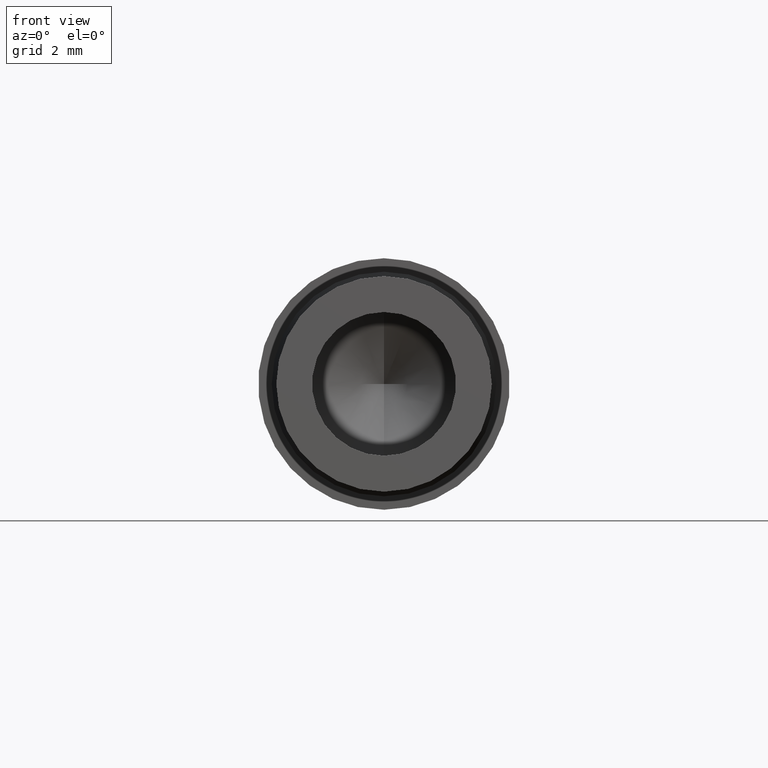
[diagram: clean part render]
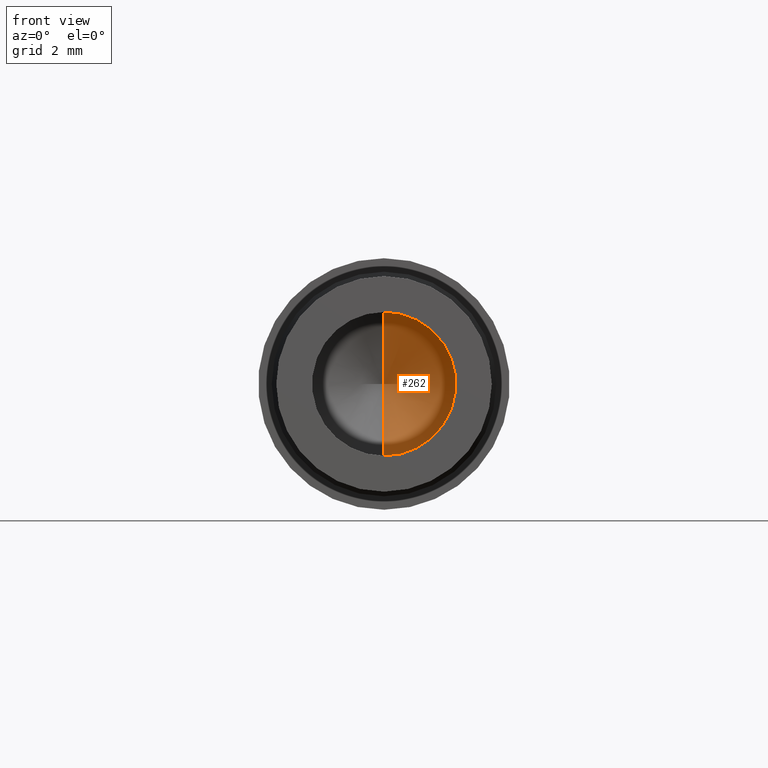
[diagram: same view with one face highlighted and labeled with its STEP entity id]
A machine part, front view. The second image highlights one B-rep face of the part: STEP entity #262.
In plain terms, the highlighted conical surface has half-angle 59 deg.
Its self-contained STEP definition (entity closure, byte-faithful):
#22 = VERTEX_POINT ( 'NONE', #357 ) ;
#51 = EDGE_CURVE ( 'NONE', #22, #113, #65, .T. ) ;
#56 = VECTOR ( 'NONE', #136, 1000.000000000000000 ) ;
#60 = CARTESIAN_POINT ( 'NONE',  ( 0.0000000000000000000, -11.29999999999999893, -1.999999999999999112 ) ) ;
#65 = CIRCLE ( 'NONE', #313, 1.999999999999999112 ) ;
#80 = DIRECTION ( 'NONE',  ( -0.0000000000000000000, -1.000000000000000000, -0.0000000000000000000 ) ) ;
#83 = EDGE_LOOP ( 'NONE', ( #343, #308, #225 ) ) ;
#94 = DIRECTION ( 'NONE',  ( 1.049727191138617956E-16, -0.5150380749100550437, 0.8571673007021117785 ) ) ;
#113 = VERTEX_POINT ( 'NONE', #236 ) ;
#136 = DIRECTION ( 'NONE',  ( 0.0000000000000000000, -0.5150380749100550437, -0.8571673007021117785 ) ) ;
#141 = DIRECTION ( 'NONE',  ( -0.0000000000000000000, -1.000000000000000000, -0.0000000000000000000 ) ) ;
#143 = VECTOR ( 'NONE', #94, 1000.000000000000000 ) ;
#156 = CONICAL_SURFACE ( 'NONE', #179, 1.999999999999999112, 1.029744258676653423 ) ;
#172 = DIRECTION ( 'NONE',  ( 0.0000000000000000000, 0.0000000000000000000, -1.000000000000000000 ) ) ;
#179 = AXIS2_PLACEMENT_3D ( 'NONE', #245, #141, #172 ) ;
#214 = EDGE_CURVE ( 'NONE', #289, #22, #449, .T. ) ;
#225 = ORIENTED_EDGE ( 'NONE', *, *, #51, .T. ) ;
#236 = CARTESIAN_POINT ( 'NONE',  ( 2.449293598294705428E-16, -11.29999999999999893, 1.999999999999999112 ) ) ;
#237 = EDGE_CURVE ( 'NONE', #289, #113, #439, .T. ) ;
#245 = CARTESIAN_POINT ( 'NONE',  ( 0.0000000000000000000, -11.29999999999999893, 0.0000000000000000000 ) ) ;
#259 = DIRECTION ( 'NONE',  ( 0.0000000000000000000, 0.0000000000000000000, -1.000000000000000000 ) ) ;
#262 = ADVANCED_FACE ( 'NONE', ( #453 ), #156, .F. ) ;
#265 = CARTESIAN_POINT ( 'NONE',  ( 2.449293598294705428E-16, -11.29999999999999893, 1.999999999999999112 ) ) ;
#289 = VERTEX_POINT ( 'NONE', #386 ) ;
#308 = ORIENTED_EDGE ( 'NONE', *, *, #214, .T. ) ;
#313 = AXIS2_PLACEMENT_3D ( 'NONE', #364, #80, #259 ) ;
#343 = ORIENTED_EDGE ( 'NONE', *, *, #237, .F. ) ;
#357 = CARTESIAN_POINT ( 'NONE',  ( 0.0000000000000000000, -11.29999999999999893, -1.999999999999999112 ) ) ;
#364 = CARTESIAN_POINT ( 'NONE',  ( 0.0000000000000000000, -11.29999999999999893, 0.0000000000000000000 ) ) ;
#386 = CARTESIAN_POINT ( 'NONE',  ( -1.886377652421879229E-15, -10.09827876194487750, 0.0000000000000000000 ) ) ;
#439 = LINE ( 'NONE', #265, #143 ) ;
#449 = LINE ( 'NONE', #60, #56 ) ;
#453 = FACE_OUTER_BOUND ( 'NONE', #83, .T. ) ;